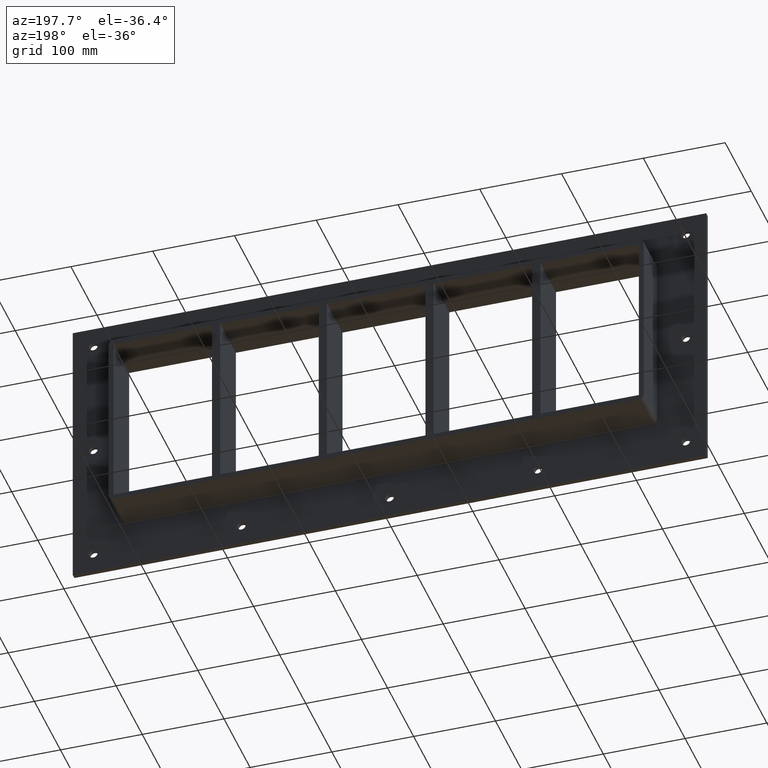
[diagram: clean part render]
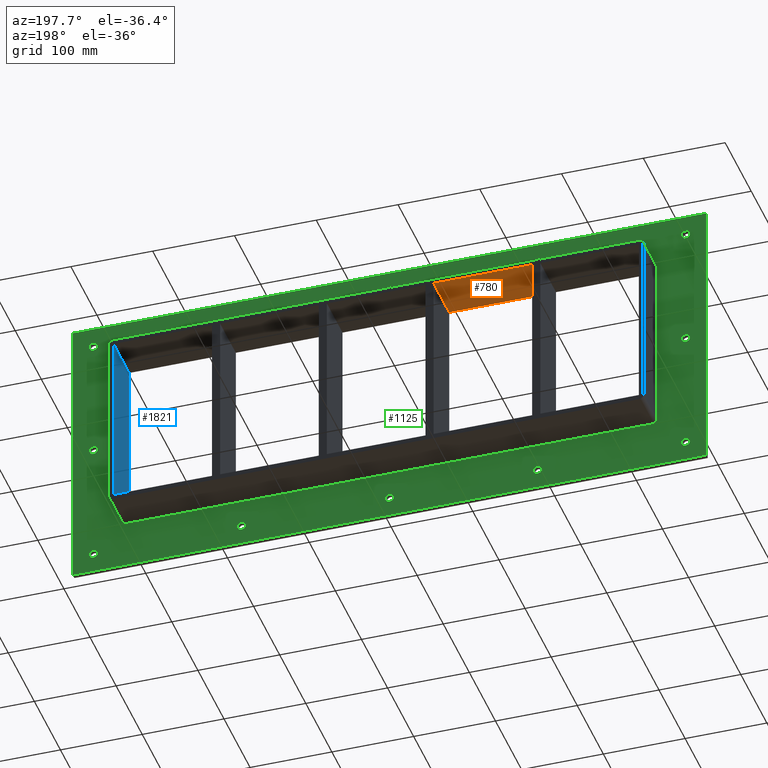
[diagram: same view with three faces highlighted in distinct colors, each labeled with its STEP entity id]
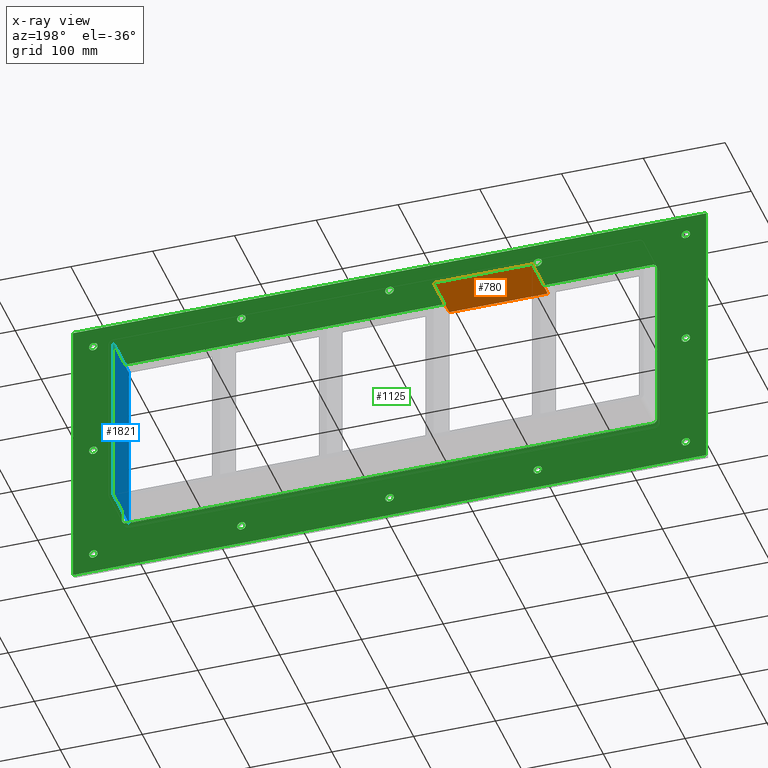
[diagram: x-ray of the same camera — body ghosted, the three highlighted faces saturated]
A machine part, auxiliary view with three faces highlighted in distinct colors.
The next image is the same camera in x-ray (body ghosted, the three faces saturated) — at least one of them is partly hidden behind the body in this view.
Their STEP definitions:

[orange] entity #780 — the highlighted planar face has unit normal (0, 0, 1).
#571=CARTESIAN_POINT('',(-70.250000000002075,-3.0,108.99999999999999));
#572=VERTEX_POINT('',#571);
#579=CARTESIAN_POINT('',(-70.250000000002075,57.0,108.99999999999999));
#580=VERTEX_POINT('',#579);
#581=CARTESIAN_POINT('',(-70.250000000002061,57.000000000000007,108.99999999999999));
#582=DIRECTION('',(0.0,-1.0,0.0));
#583=VECTOR('',#582,60.000000000000007);
#584=LINE('',#581,#583);
#585=EDGE_CURVE('',#580,#572,#584,.T.);
#750=CARTESIAN_POINT('',(-321.25,0.0,108.99999999999999));
#751=DIRECTION('',(0.0,0.0,1.0));
#752=DIRECTION('',(1.0,0.0,0.0));
#753=AXIS2_PLACEMENT_3D('',#750,#751,#752);
#754=PLANE('',#753);
#755=ORIENTED_EDGE('',*,*,#585,.T.);
#756=CARTESIAN_POINT('',(-190.75000000000728,-3.0,108.99999999999999));
#757=VERTEX_POINT('',#756);
#758=CARTESIAN_POINT('',(-190.75000000000728,-3.0,108.99999999999999));
#759=DIRECTION('',(1.0,0.0,0.0));
#760=VECTOR('',#759,120.5000000000052);
#761=LINE('',#758,#760);
#762=EDGE_CURVE('',#757,#572,#761,.T.);
#763=ORIENTED_EDGE('',*,*,#762,.F.);
#764=CARTESIAN_POINT('',(-190.75000000000728,57.0,108.99999999999999));
#765=VERTEX_POINT('',#764);
#766=CARTESIAN_POINT('',(-190.75000000000728,-3.0,108.99999999999999));
#767=DIRECTION('',(0.0,1.0,0.0));
#768=VECTOR('',#767,60.000000000000007);
#769=LINE('',#766,#768);
#770=EDGE_CURVE('',#757,#765,#769,.T.);
#771=ORIENTED_EDGE('',*,*,#770,.T.);
#772=CARTESIAN_POINT('',(-70.250000000002075,57.0,108.99999999999999));
#773=DIRECTION('',(-1.0,0.0,0.0));
#774=VECTOR('',#773,120.5000000000052);
#775=LINE('',#772,#774);
#776=EDGE_CURVE('',#580,#765,#775,.T.);
#777=ORIENTED_EDGE('',*,*,#776,.F.);
#778=EDGE_LOOP('',(#755,#763,#771,#777));
#779=FACE_OUTER_BOUND('',#778,.T.);
#780=ADVANCED_FACE('',(#779),#754,.F.);

[blue] entity #1821 — the highlighted planar face has unit normal (1, 0, 0).
#725=CARTESIAN_POINT('',(321.25,-3.0,-109.00000000000003));
#726=VERTEX_POINT('',#725);
#733=CARTESIAN_POINT('',(321.25,57.0,-109.00000000000003));
#734=VERTEX_POINT('',#733);
#735=CARTESIAN_POINT('',(321.25,56.999999999999993,-109.00000000000003));
#736=DIRECTION('',(0.0,-1.0,0.0));
#737=VECTOR('',#736,59.999999999999993);
#738=LINE('',#735,#737);
#739=EDGE_CURVE('',#734,#726,#738,.T.);
#809=CARTESIAN_POINT('',(321.25,57.0,108.99999999999999));
#810=VERTEX_POINT('',#809);
#817=CARTESIAN_POINT('',(321.25,-3.0,108.99999999999999));
#818=VERTEX_POINT('',#817);
#819=CARTESIAN_POINT('',(321.25,-3.0,108.99999999999999));
#820=DIRECTION('',(0.0,1.0,0.0));
#821=VECTOR('',#820,60.0);
#822=LINE('',#819,#821);
#823=EDGE_CURVE('',#818,#810,#822,.T.);
#1704=CARTESIAN_POINT('',(321.25,-3.0,108.99999999999999));
#1705=DIRECTION('',(0.0,0.0,-1.0));
#1706=VECTOR('',#1705,218.0);
#1707=LINE('',#1704,#1706);
#1708=EDGE_CURVE('',#818,#726,#1707,.T.);
#1805=CARTESIAN_POINT('',(321.25,0.0,108.99999999999999));
#1806=DIRECTION('',(1.0,0.0,0.0));
#1807=DIRECTION('',(0.0,0.0,-1.0));
#1808=AXIS2_PLACEMENT_3D('',#1805,#1806,#1807);
#1809=PLANE('',#1808);
#1810=ORIENTED_EDGE('',*,*,#739,.T.);
#1811=ORIENTED_EDGE('',*,*,#1708,.F.);
#1812=ORIENTED_EDGE('',*,*,#823,.T.);
#1813=CARTESIAN_POINT('',(321.25,57.0,-109.0));
#1814=DIRECTION('',(0.0,0.0,1.0));
#1815=VECTOR('',#1814,218.0);
#1816=LINE('',#1813,#1815);
#1817=EDGE_CURVE('',#734,#810,#1816,.T.);
#1818=ORIENTED_EDGE('',*,*,#1817,.F.);
#1819=EDGE_LOOP('',(#1810,#1811,#1812,#1818));
#1820=FACE_OUTER_BOUND('',#1819,.T.);
#1821=ADVANCED_FACE('',(#1820),#1809,.F.);

[green] entity #1125 — the highlighted planar face has unit normal (0, 1, 0).
#73=CARTESIAN_POINT('',(-367.50000000000006,5.999999999999943,-150.0));
#74=VERTEX_POINT('',#73);
#75=CARTESIAN_POINT('',(-362.25000000000011,5.999999999999943,-150.0));
#76=DIRECTION('',(0.0,-1.0,0.0));
#77=DIRECTION('',(1.0,0.0,0.0));
#78=AXIS2_PLACEMENT_3D('',#75,#76,#77);
#79=CIRCLE('',#78,5.25);
#80=EDGE_CURVE('',#74,#74,#79,.T.);
#101=CARTESIAN_POINT('',(356.89999999999992,5.999999999999943,0.0));
#102=VERTEX_POINT('',#101);
#103=CARTESIAN_POINT('',(362.14999999999986,5.999999999999943,0.0));
#104=DIRECTION('',(0.0,-1.0,0.0));
#105=DIRECTION('',(1.0,0.0,0.0));
#106=AXIS2_PLACEMENT_3D('',#103,#104,#105);
#107=CIRCLE('',#106,5.25);
#108=EDGE_CURVE('',#102,#102,#107,.T.);
#129=CARTESIAN_POINT('',(-367.50000000000006,5.999999999999943,0.0));
#130=VERTEX_POINT('',#129);
#131=CARTESIAN_POINT('',(-362.25000000000011,5.999999999999943,0.0));
#132=DIRECTION('',(0.0,-1.0,0.0));
#133=DIRECTION('',(1.0,0.0,0.0));
#134=AXIS2_PLACEMENT_3D('',#131,#132,#133);
#135=CIRCLE('',#134,5.25);
#136=EDGE_CURVE('',#130,#130,#135,.T.);
#157=CARTESIAN_POINT('',(-186.40000000000009,5.999999999999943,150.0));
#158=VERTEX_POINT('',#157);
#159=CARTESIAN_POINT('',(-181.15000000000009,5.999999999999943,150.0));
#160=DIRECTION('',(0.0,-1.0,0.0));
#161=DIRECTION('',(1.0,0.0,0.0));
#162=AXIS2_PLACEMENT_3D('',#159,#160,#161);
#163=CIRCLE('',#162,5.25);
#164=EDGE_CURVE('',#158,#158,#163,.T.);
#185=CARTESIAN_POINT('',(-186.40000000000009,5.999999999999943,-150.0));
#186=VERTEX_POINT('',#185);
#187=CARTESIAN_POINT('',(-181.15000000000009,5.999999999999943,-150.0));
#188=DIRECTION('',(0.0,-1.0,0.0));
#189=DIRECTION('',(1.0,0.0,0.0));
#190=AXIS2_PLACEMENT_3D('',#187,#188,#189);
#191=CIRCLE('',#190,5.25);
#192=EDGE_CURVE('',#186,#186,#191,.T.);
#213=CARTESIAN_POINT('',(-5.300000000000082,5.999999999999943,150.0));
#214=VERTEX_POINT('',#213);
#215=CARTESIAN_POINT('',(-0.050000000000097,5.999999999999943,150.0));
#216=DIRECTION('',(0.0,-1.0,0.0));
#217=DIRECTION('',(1.0,0.0,0.0));
#218=AXIS2_PLACEMENT_3D('',#215,#216,#217);
#219=CIRCLE('',#218,5.25);
#220=EDGE_CURVE('',#214,#214,#219,.T.);
#241=CARTESIAN_POINT('',(-5.300000000000082,5.999999999999943,-150.0));
#242=VERTEX_POINT('',#241);
#243=CARTESIAN_POINT('',(-0.050000000000097,5.999999999999943,-150.0));
#244=DIRECTION('',(0.0,-1.0,0.0));
#245=DIRECTION('',(1.0,0.0,0.0));
#246=AXIS2_PLACEMENT_3D('',#243,#244,#245);
#247=CIRCLE('',#246,5.25);
#248=EDGE_CURVE('',#242,#242,#247,.T.);
#269=CARTESIAN_POINT('',(175.7999999999999,5.999999999999943,150.0));
#270=VERTEX_POINT('',#269);
#271=CARTESIAN_POINT('',(181.0499999999999,5.999999999999943,150.0));
#272=DIRECTION('',(0.0,-1.0,0.0));
#273=DIRECTION('',(1.0,0.0,0.0));
#274=AXIS2_PLACEMENT_3D('',#271,#272,#273);
#275=CIRCLE('',#274,5.25);
#276=EDGE_CURVE('',#270,#270,#275,.T.);
#297=CARTESIAN_POINT('',(175.7999999999999,5.999999999999943,-150.0));
#298=VERTEX_POINT('',#297);
#299=CARTESIAN_POINT('',(181.0499999999999,5.999999999999943,-150.0));
#300=DIRECTION('',(0.0,-1.0,0.0));
#301=DIRECTION('',(1.0,0.0,0.0));
#302=AXIS2_PLACEMENT_3D('',#299,#300,#301);
#303=CIRCLE('',#302,5.25);
#304=EDGE_CURVE('',#298,#298,#303,.T.);
#325=CARTESIAN_POINT('',(356.89999999999992,5.999999999999943,-150.0));
#326=VERTEX_POINT('',#325);
#327=CARTESIAN_POINT('',(362.14999999999986,5.999999999999943,-150.0));
#328=DIRECTION('',(0.0,-1.0,0.0));
#329=DIRECTION('',(1.0,0.0,0.0));
#330=AXIS2_PLACEMENT_3D('',#327,#328,#329);
#331=CIRCLE('',#330,5.25);
#332=EDGE_CURVE('',#326,#326,#331,.T.);
#353=CARTESIAN_POINT('',(-367.50000000000006,5.999999999999943,150.0));
#354=VERTEX_POINT('',#353);
#355=CARTESIAN_POINT('',(-362.25000000000011,5.999999999999943,150.0));
#356=DIRECTION('',(0.0,-1.0,0.0));
#357=DIRECTION('',(1.0,0.0,0.0));
#358=AXIS2_PLACEMENT_3D('',#355,#356,#357);
#359=CIRCLE('',#358,5.25);
#360=EDGE_CURVE('',#354,#354,#359,.T.);
#381=CARTESIAN_POINT('',(356.89999999999992,5.999999999999943,150.0));
#382=VERTEX_POINT('',#381);
#383=CARTESIAN_POINT('',(362.14999999999986,5.999999999999943,150.0));
#384=DIRECTION('',(0.0,-1.0,0.0));
#385=DIRECTION('',(1.0,0.0,0.0));
#386=AXIS2_PLACEMENT_3D('',#383,#384,#385);
#387=CIRCLE('',#386,5.25);
#388=EDGE_CURVE('',#382,#382,#387,.T.);
#980=CARTESIAN_POINT('',(3.791246E-014,6.000000000000001,-1.516499E-014));
#981=DIRECTION('',(0.0,1.0,0.0));
#982=DIRECTION('',(0.0,0.0,1.0));
#983=AXIS2_PLACEMENT_3D('',#980,#981,#982);
#984=PLANE('',#983);
#985=CARTESIAN_POINT('',(-387.24999999999994,6.000000000000001,174.99999999999997));
#986=VERTEX_POINT('',#985);
#987=CARTESIAN_POINT('',(387.24999999999994,6.000000000000001,174.99999999999997));
#988=VERTEX_POINT('',#987);
#989=CARTESIAN_POINT('',(-387.24999999999994,6.000000000000001,174.99999999999997));
#990=DIRECTION('',(1.0,0.0,0.0));
#991=VECTOR('',#990,774.49999999999989);
#992=LINE('',#989,#991);
#993=EDGE_CURVE('',#986,#988,#992,.T.);
#994=ORIENTED_EDGE('',*,*,#993,.T.);
#995=CARTESIAN_POINT('',(387.24999999999994,6.000000000000001,-175.00000000000003));
#996=VERTEX_POINT('',#995);
#997=CARTESIAN_POINT('',(387.25,6.000000000000001,174.99999999999997));
#998=DIRECTION('',(0.0,0.0,-1.0));
#999=VECTOR('',#998,350.0);
#1000=LINE('',#997,#999);
#1001=EDGE_CURVE('',#988,#996,#1000,.T.);
#1002=ORIENTED_EDGE('',*,*,#1001,.T.);
#1003=CARTESIAN_POINT('',(-387.24999999999994,6.000000000000001,-175.00000000000003));
#1004=VERTEX_POINT('',#1003);
#1005=CARTESIAN_POINT('',(387.25,6.000000000000001,-175.0));
#1006=DIRECTION('',(-1.0,0.0,0.0));
#1007=VECTOR('',#1006,774.49999999999989);
#1008=LINE('',#1005,#1007);
#1009=EDGE_CURVE('',#996,#1004,#1008,.T.);
#1010=ORIENTED_EDGE('',*,*,#1009,.T.);
#1011=CARTESIAN_POINT('',(-387.24999999999994,6.000000000000001,-175.0));
#1012=DIRECTION('',(0.0,0.0,1.0));
#1013=VECTOR('',#1012,350.0);
#1014=LINE('',#1011,#1013);
#1015=EDGE_CURVE('',#1004,#986,#1014,.T.);
#1016=ORIENTED_EDGE('',*,*,#1015,.T.);
#1017=EDGE_LOOP('',(#994,#1002,#1010,#1016));
#1018=FACE_OUTER_BOUND('',#1017,.T.);
#1019=ORIENTED_EDGE('',*,*,#80,.T.);
#1020=EDGE_LOOP('',(#1019));
#1021=FACE_BOUND('',#1020,.T.);
#1022=ORIENTED_EDGE('',*,*,#108,.T.);
#1023=EDGE_LOOP('',(#1022));
#1024=FACE_BOUND('',#1023,.T.);
#1025=ORIENTED_EDGE('',*,*,#136,.T.);
#1026=EDGE_LOOP('',(#1025));
#1027=FACE_BOUND('',#1026,.T.);
#1028=ORIENTED_EDGE('',*,*,#164,.T.);
#1029=EDGE_LOOP('',(#1028));
#1030=FACE_BOUND('',#1029,.T.);
#1031=ORIENTED_EDGE('',*,*,#192,.T.);
#1032=EDGE_LOOP('',(#1031));
#1033=FACE_BOUND('',#1032,.T.);
#1034=ORIENTED_EDGE('',*,*,#220,.T.);
#1035=EDGE_LOOP('',(#1034));
#1036=FACE_BOUND('',#1035,.T.);
#1037=ORIENTED_EDGE('',*,*,#248,.T.);
#1038=EDGE_LOOP('',(#1037));
#1039=FACE_BOUND('',#1038,.T.);
#1040=ORIENTED_EDGE('',*,*,#276,.T.);
#1041=EDGE_LOOP('',(#1040));
#1042=FACE_BOUND('',#1041,.T.);
#1043=ORIENTED_EDGE('',*,*,#304,.T.);
#1044=EDGE_LOOP('',(#1043));
#1045=FACE_BOUND('',#1044,.T.);
#1046=ORIENTED_EDGE('',*,*,#332,.T.);
#1047=EDGE_LOOP('',(#1046));
#1048=FACE_BOUND('',#1047,.T.);
#1049=ORIENTED_EDGE('',*,*,#360,.T.);
#1050=EDGE_LOOP('',(#1049));
#1051=FACE_BOUND('',#1050,.T.);
#1052=ORIENTED_EDGE('',*,*,#388,.T.);
#1053=EDGE_LOOP('',(#1052));
#1054=FACE_BOUND('',#1053,.T.);
#1055=CARTESIAN_POINT('',(-321.25,6.000000000000001,-115.0));
#1056=VERTEX_POINT('',#1055);
#1057=CARTESIAN_POINT('',(-327.24999999999994,6.000000000000001,-108.99999999999999));
#1058=VERTEX_POINT('',#1057);
#1059=CARTESIAN_POINT('',(-321.25,6.000000000000001,-108.99999999999999));
#1060=DIRECTION('',(0.0,1.0,0.0));
#1061=DIRECTION('',(-0.707106781186543,0.0,-0.707106781186552));
#1062=AXIS2_PLACEMENT_3D('',#1059,#1060,#1061);
#1063=CIRCLE('',#1062,6.000000000000001);
#1064=EDGE_CURVE('',#1056,#1058,#1063,.T.);
#1065=ORIENTED_EDGE('',*,*,#1064,.F.);
#1066=CARTESIAN_POINT('',(321.25,6.000000000000001,-115.0));
#1067=VERTEX_POINT('',#1066);
#1068=CARTESIAN_POINT('',(321.25,6.000000000000001,-115.0));
#1069=DIRECTION('',(-1.0,0.0,0.0));
#1070=VECTOR('',#1069,642.5);
#1071=LINE('',#1068,#1070);
#1072=EDGE_CURVE('',#1067,#1056,#1071,.T.);
#1073=ORIENTED_EDGE('',*,*,#1072,.F.);
#1074=CARTESIAN_POINT('',(327.24999999999994,6.000000000000001,-108.99999999999999));
#1075=VERTEX_POINT('',#1074);
#1076=CARTESIAN_POINT('',(321.25,6.000000000000001,-108.99999999999999));
#1077=DIRECTION('',(0.0,1.0,0.0));
#1078=DIRECTION('',(0.707106781186543,0.0,-0.707106781186552));
#1079=AXIS2_PLACEMENT_3D('',#1076,#1077,#1078);
#1080=CIRCLE('',#1079,6.000000000000001);
#1081=EDGE_CURVE('',#1075,#1067,#1080,.T.);
#1082=ORIENTED_EDGE('',*,*,#1081,.F.);
#1083=CARTESIAN_POINT('',(327.24999999999994,6.000000000000001,109.0));
#1084=VERTEX_POINT('',#1083);
#1085=CARTESIAN_POINT('',(327.24999999999994,6.000000000000001,109.0));
#1086=DIRECTION('',(0.0,0.0,-1.0));
#1087=VECTOR('',#1086,218.0);
#1088=LINE('',#1085,#1087);
#1089=EDGE_CURVE('',#1084,#1075,#1088,.T.);
#1090=ORIENTED_EDGE('',*,*,#1089,.F.);
#1091=CARTESIAN_POINT('',(321.25,6.000000000000001,115.0));
#1092=VERTEX_POINT('',#1091);
#1093=CARTESIAN_POINT('',(321.25,6.000000000000001,109.0));
#1094=DIRECTION('',(0.0,1.0,0.0));
#1095=DIRECTION('',(0.707106781186545,0.0,0.70710678118655));
#1096=AXIS2_PLACEMENT_3D('',#1093,#1094,#1095);
#1097=CIRCLE('',#1096,6.000000000000001);
#1098=EDGE_CURVE('',#1092,#1084,#1097,.T.);
#1099=ORIENTED_EDGE('',*,*,#1098,.F.);
#1100=CARTESIAN_POINT('',(-321.25,6.000000000000001,115.0));
#1101=VERTEX_POINT('',#1100);
#1102=CARTESIAN_POINT('',(-321.25,6.000000000000001,115.0));
#1103=DIRECTION('',(1.0,0.0,0.0));
#1104=VECTOR('',#1103,642.5);
#1105=LINE('',#1102,#1104);
#1106=EDGE_CURVE('',#1101,#1092,#1105,.T.);
#1107=ORIENTED_EDGE('',*,*,#1106,.F.);
#1108=CARTESIAN_POINT('',(-327.24999999999994,6.000000000000001,108.99999999999999));
#1109=VERTEX_POINT('',#1108);
#1110=CARTESIAN_POINT('',(-321.25,6.000000000000001,108.99999999999999));
#1111=DIRECTION('',(0.0,1.0,0.0));
#1112=DIRECTION('',(-0.707106781186543,0.0,0.707106781186552));
#1113=AXIS2_PLACEMENT_3D('',#1110,#1111,#1112);
#1114=CIRCLE('',#1113,6.000000000000001);
#1115=EDGE_CURVE('',#1109,#1101,#1114,.T.);
#1116=ORIENTED_EDGE('',*,*,#1115,.F.);
#1117=CARTESIAN_POINT('',(-327.24999999999994,6.000000000000001,-108.99999999999999));
#1118=DIRECTION('',(0.0,0.0,1.0));
#1119=VECTOR('',#1118,218.0);
#1120=LINE('',#1117,#1119);
#1121=EDGE_CURVE('',#1058,#1109,#1120,.T.);
#1122=ORIENTED_EDGE('',*,*,#1121,.F.);
#1123=EDGE_LOOP('',(#1065,#1073,#1082,#1090,#1099,#1107,#1116,#1122));
#1124=FACE_BOUND('',#1123,.T.);
#1125=ADVANCED_FACE('',(#1018,#1021,#1024,#1027,#1030,#1033,#1036,#1039,#1042,#1045,#1048,#1051,#1054,#1124),#984,.T.);